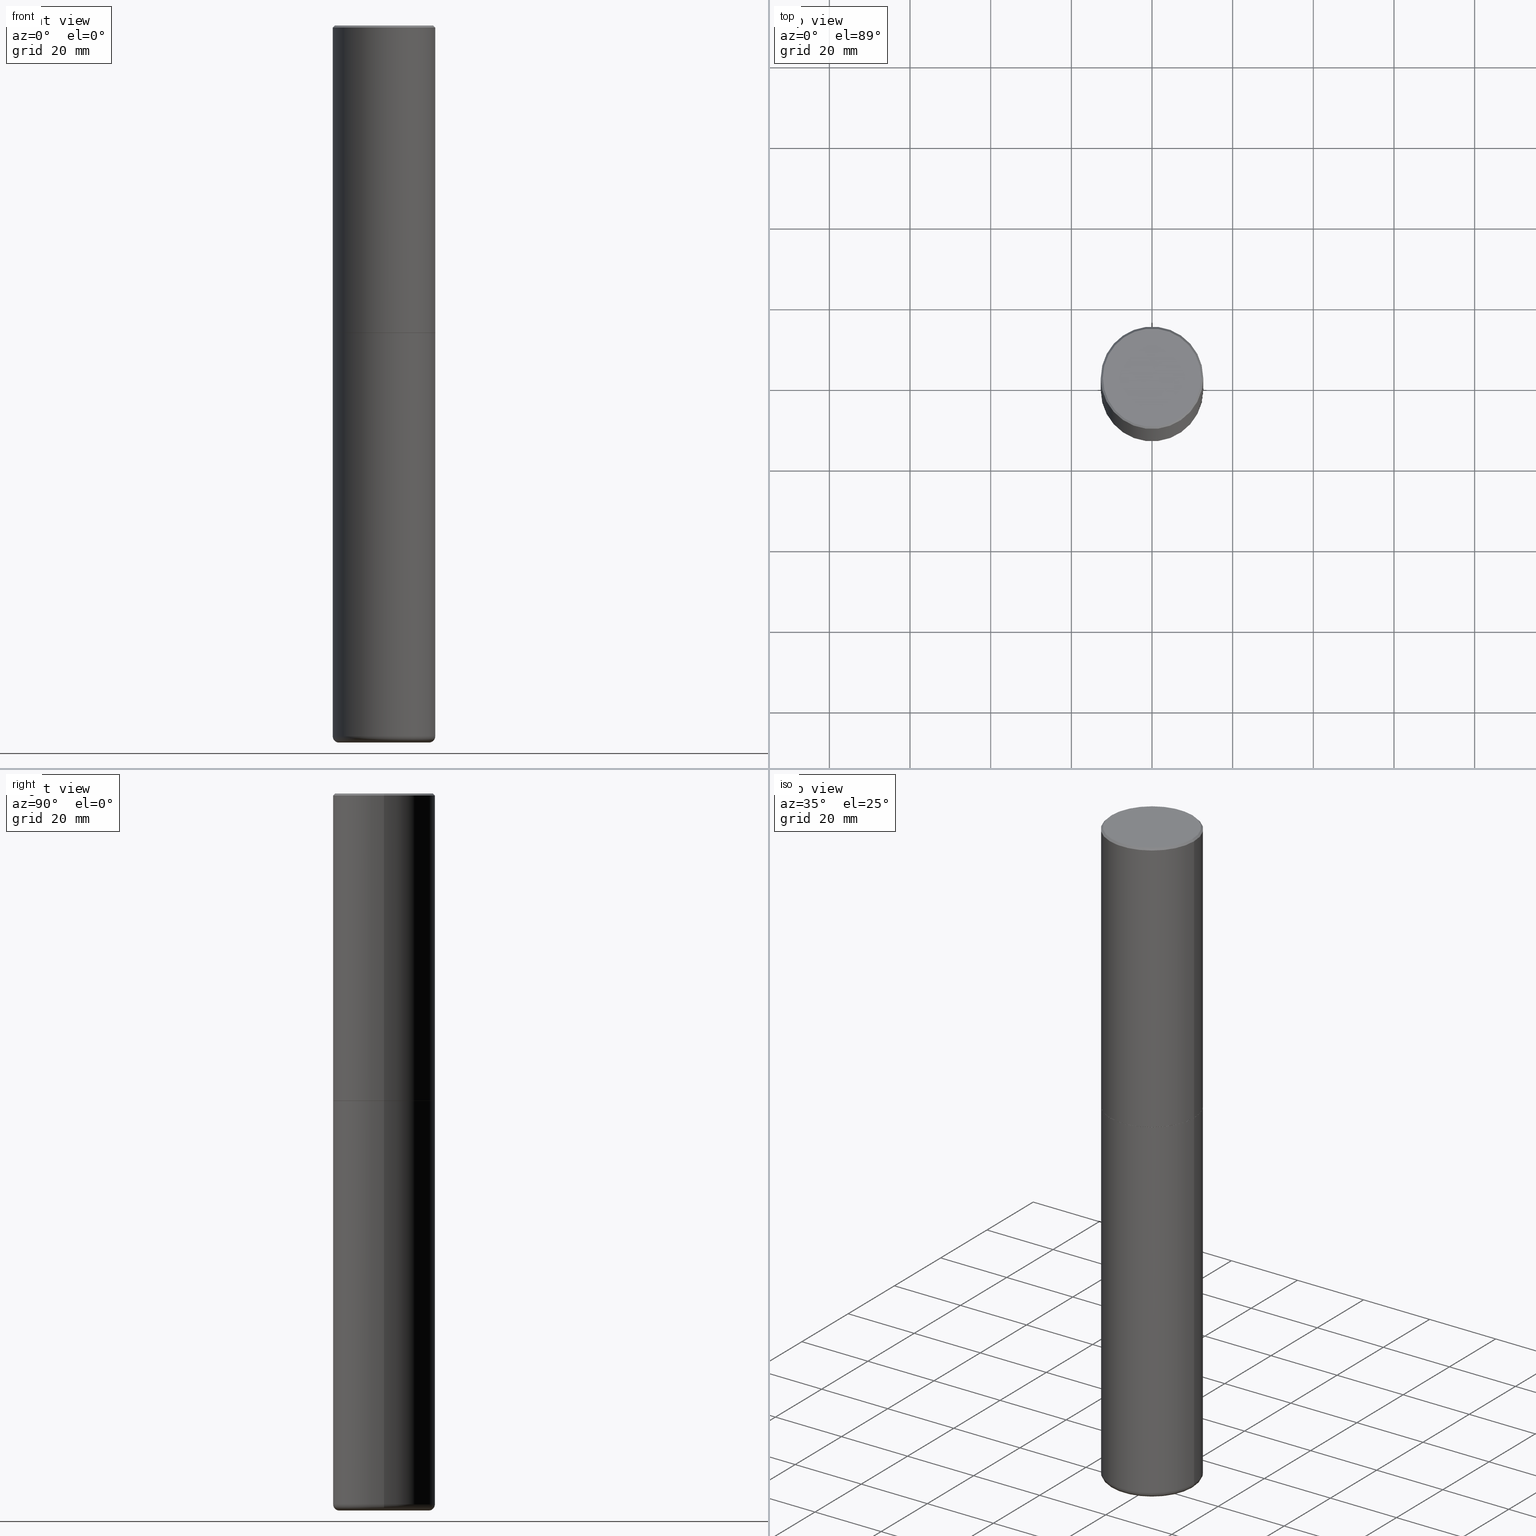
[diagram: canonical four-view strip — front | top / right | iso, engineering-drawing reading convention]
A machine part, canonical four-view strip (front | top / right | iso — engineering-drawing reading convention). The complete STEP part file that produces these views, byte-faithful:
ISO-10303-21;
HEADER;
FILE_DESCRIPTION (( 'STEP AP203' ),
    '1' );
FILE_NAME ('77333.STEP',
    '2024-03-06T17:09:45',
    ( '' ),
    ( '' ),
    'SwSTEP 2.0',
    'SolidWorks 2023',
    '' );
FILE_SCHEMA (( 'CONFIG_CONTROL_DESIGN' ));
ENDSEC;

DATA;
#1 = ORIENTED_EDGE ( 'NONE', *, *, #186, .T. ) ;
#2 = APPROVAL_DATE_TIME ( #418, #180 ) ;
#3 = CARTESIAN_POINT ( 'NONE',  ( 3.351822085289407153E-15, 0.4799999999999999267, -1.616151867783303914E-15 ) ) ;
#4 = APPLICATION_CONTEXT ( 'configuration controlled 3d designs of mechanical parts and assemblies' ) ;
#5 = DIRECTION ( 'NONE',  ( -2.445468806185136597E-29, 3.491481338843145583E-15, 1.000000000000000000 ) ) ;
#6 = AXIS2_PLACEMENT_3D ( 'NONE', #165, #66, #288 ) ;
#7 = VERTEX_POINT ( 'NONE', #199 ) ;
#8 = ADVANCED_FACE ( 'NONE', ( #314 ), #338, .T. ) ;
#9 = DIRECTION ( 'NONE',  ( 2.445468806185136597E-29, -3.491481338843145583E-15, -1.000000000000000000 ) ) ;
#10 = DIRECTION ( 'NONE',  ( -2.445468806185136597E-29, 3.491481338843145583E-15, 1.000000000000000000 ) ) ;
#11 = FACE_OUTER_BOUND ( 'NONE', #367, .T. ) ;
#12 = ADVANCED_BREP_SHAPE_REPRESENTATION ( '77333', ( #151, #155, #204 ), #107 ) ;
#13 = VECTOR ( 'NONE', #130, 39.37007874015748143 ) ;
#14 = DIRECTION ( 'NONE',  ( -1.000000000000000000, 6.982962677686265922E-15, -4.876176775795935793E-29 ) ) ;
#15 = APPROVAL_DATE_TIME ( #79, #335 ) ;
#16 = ORIENTED_EDGE ( 'NONE', *, *, #302, .T. ) ;
#17 = CIRCLE ( 'NONE', #153, 0.5000000000000001110 ) ;
#18 = LENGTH_MEASURE_WITH_UNIT ( LENGTH_MEASURE( 0.02539999999999999897 ), #377 );
#19 = CC_DESIGN_DATE_AND_TIME_ASSIGNMENT ( #328, #235, ( #64 ) ) ;
#20 = ORIENTED_EDGE ( 'NONE', *, *, #53, .F. ) ;
#21 = DATE_AND_TIME ( #245, #291 ) ;
#22 = DIRECTION ( 'NONE',  ( 1.000000000000000000, -6.982962677686269077E-15, 0.000000000000000000 ) ) ;
#23 = CIRCLE ( 'NONE', #407, 0.5000000000000001110 ) ;
#24 = DIRECTION ( 'NONE',  ( 1.000000000000000000, -6.982962677686266711E-15, 4.876176775795935793E-29 ) ) ;
#25 = FACE_OUTER_BOUND ( 'NONE', #114, .T. ) ;
#26 = EDGE_CURVE ( 'NONE', #145, #273, #227, .T. ) ;
#27 = DIRECTION ( 'NONE',  ( -1.000000000000000000, 6.982962677686265922E-15, 0.000000000000000000 ) ) ;
#28 = VERTEX_POINT ( 'NONE', #96 ) ;
#29 = COORDINATED_UNIVERSAL_TIME_OFFSET ( 5, 0, .BEHIND. ) ;
#30 = ADVANCED_FACE ( 'NONE', ( #348 ), #63, .F. ) ;
#31 = VERTEX_POINT ( 'NONE', #287 ) ;
#32 = CALENDAR_DATE ( 2024, 6, 3 ) ;
#33 = AXIS2_PLACEMENT_3D ( 'NONE', #215, #323, #242 ) ;
#34 = DIRECTION ( 'NONE',  ( 1.000000000000000000, -6.982962677686266711E-15, 4.876176775795935793E-29 ) ) ;
#35 = DIRECTION ( 'NONE',  ( 1.000000000000000000, -6.982962677686265922E-15, 4.876176775795935793E-29 ) ) ;
#36 = APPROVAL_STATUS ( 'not_yet_approved' ) ;
#37 = DIRECTION ( 'NONE',  ( 1.000000000000000000, -6.982962677686270655E-15, 4.883557194083114583E-29 ) ) ;
#38 = TOROIDAL_SURFACE ( 'NONE', #362, 0.4400000000000000022, 0.06000000000000051820 ) ;
#39 = CONICAL_SURFACE ( 'NONE', #268, 0.5000000000000001110, 0.7853981633974458365 ) ;
#40 = FACE_OUTER_BOUND ( 'NONE', #345, .T. ) ;
#41 = CARTESIAN_POINT ( 'NONE',  ( 0.000000000000000000, 0.000000000000000000, 0.000000000000000000 ) ) ;
#42 = DIRECTION ( 'NONE',  ( 1.000000000000000000, -6.982962677686269077E-15, 0.000000000000000000 ) ) ;
#43 = CARTESIAN_POINT ( 'NONE',  ( -0.4989999999999999991, -6.923537310738311664E-15, -2.999999999999999556 ) ) ;
#44 = CALENDAR_DATE ( 2024, 6, 3 ) ;
#45 = APPROVAL_ROLE ( '' ) ;
#46 = VERTEX_POINT ( 'NONE', #131 ) ;
#47 = EDGE_CURVE ( 'NONE', #62, #334, #399, .T. ) ;
#48 = CIRCLE ( 'NONE', #275, 0.4989999999999999991 ) ;
#49 = APPROVAL_PERSON_ORGANIZATION ( #183, #335, #45 ) ;
#50 = ORIENTED_EDGE ( 'NONE', *, *, #322, .F. ) ;
#51 = APPROVAL_STATUS ( 'not_yet_approved' ) ;
#52 = DIRECTION ( 'NONE',  ( -2.445468806185136597E-29, 3.491481338843145583E-15, 1.000000000000000000 ) ) ;
#53 = EDGE_CURVE ( 'NONE', #31, #223, #408, .T. ) ;
#54 = ORIENTED_EDGE ( 'NONE', *, *, #365, .F. ) ;
#55 = DIRECTION ( 'NONE',  ( -2.445468806185136597E-29, 3.491481338843145583E-15, 1.000000000000000000 ) ) ;
#56 = DIRECTION ( 'NONE',  ( 0.000000000000000000, 0.000000000000000000, 1.000000000000000000 ) ) ;
#57 = CIRCLE ( 'NONE', #312, 0.5000000000000001110 ) ;
#58 = CARTESIAN_POINT ( 'NONE',  ( 7.336406418555408669E-29, -1.047444401652943478E-14, -2.999999999999999556 ) ) ;
#59 = FACE_OUTER_BOUND ( 'NONE', #83, .T. ) ;
#60 = PERSON_AND_ORGANIZATION_ROLE ( 'design_owner' ) ;
#61 = ADVANCED_FACE ( 'NONE', ( #25 ), #110, .T. ) ;
#62 = VERTEX_POINT ( 'NONE', #411 ) ;
#63 = PLANE ( 'NONE',  #400 ) ;
#64 = SECURITY_CLASSIFICATION ( '', '', #213 ) ;
#65 = CARTESIAN_POINT ( 'NONE',  ( 0.5000000000000001110, -3.500078625662629868E-15, -0.02000000000000010797 ) ) ;
#66 = DIRECTION ( 'NONE',  ( -2.445468806185136597E-29, 3.491481338843145583E-15, 1.000000000000000000 ) ) ;
#67 = EDGE_CURVE ( 'NONE', #241, #297, #350, .T. ) ;
#68 = CYLINDRICAL_SURFACE ( 'NONE', #320, 0.5000000000000000000 ) ;
#69 = ORIENTED_EDGE ( 'NONE', *, *, #216, .F. ) ;
#70 = AXIS2_PLACEMENT_3D ( 'NONE', #139, #313, #98 ) ;
#71 = PRODUCT_DEFINITION_FORMATION_WITH_SPECIFIED_SOURCE ( 'ANY', '', #120, .NOT_KNOWN. ) ;
#72 = FACE_OUTER_BOUND ( 'NONE', #123, .T. ) ;
#73 = ADVANCED_FACE ( 'NONE', ( #59 ), #196, .F. ) ;
#74 = DIRECTION ( 'NONE',  ( 1.000000000000000000, -6.982962677686265922E-15, 0.000000000000000000 ) ) ;
#75 = PERSON_AND_ORGANIZATION_ROLE ( 'classification_officer' ) ;
#76 = CC_DESIGN_PERSON_AND_ORGANIZATION_ASSIGNMENT ( #307, #60, ( #120 ) ) ;
#77 = DIRECTION ( 'NONE',  ( -2.445468806185136877E-29, 3.491481338843145188E-15, 1.000000000000000000 ) ) ;
#78 = AXIS2_PLACEMENT_3D ( 'NONE', #357, #326, #324 ) ;
#79 = DATE_AND_TIME ( #44, #136 ) ;
#80 = EDGE_CURVE ( 'NONE', #145, #7, #290, .T. ) ;
#81 = ORIENTED_EDGE ( 'NONE', *, *, #373, .F. ) ;
#82 = CYLINDRICAL_SURFACE ( 'NONE', #332, 0.5000000000000002220 ) ;
#83 = EDGE_LOOP ( 'NONE', ( #218, #277 ) ) ;
#84 = DIRECTION ( 'NONE',  ( 1.000000000000000000, -6.982962677686269077E-15, 0.000000000000000000 ) ) ;
#85 = AXIS2_PLACEMENT_3D ( 'NONE', #269, #293, #356 ) ;
#86 = PERSON_AND_ORGANIZATION_ROLE ( 'creator' ) ;
#87 = UNCERTAINTY_MEASURE_WITH_UNIT (LENGTH_MEASURE( 1.000000000000000082E-05 ), #149, 'distance_accuracy_value', 'NONE');
#88 = CC_DESIGN_DATE_AND_TIME_ASSIGNMENT ( #21, #138, ( #211 ) ) ;
#89 = DIRECTION ( 'NONE',  ( -2.445468806185136597E-29, 3.491481338843145583E-15, 1.000000000000000000 ) ) ;
#90 = DIRECTION ( 'NONE',  ( 1.000000000000000000, -6.982962677686265922E-15, 0.000000000000000000 ) ) ;
#91 = AXIS2_PLACEMENT_3D ( 'NONE', #259, #386, #100 ) ;
#92 = DIRECTION ( 'NONE',  ( -2.445468806185136597E-29, 3.491481338843145583E-15, 1.000000000000000000 ) ) ;
#93 = DIRECTION ( 'NONE',  ( -0.7071067811867406405, 7.493145998871051513E-15, 0.7071067811863543939 ) ) ;
#94 =( NAMED_UNIT ( * ) SI_UNIT ( $, .STERADIAN. ) SOLID_ANGLE_UNIT ( ) );
#95 = FACE_OUTER_BOUND ( 'NONE', #168, .T. ) ;
#96 = CARTESIAN_POINT ( 'NONE',  ( -0.5000000000000003331, -1.717677402183223054E-15, -2.999000000000000110 ) ) ;
#97 = CC_DESIGN_PERSON_AND_ORGANIZATION_ASSIGNMENT ( #170, #260, ( #71 ) ) ;
#98 = DIRECTION ( 'NONE',  ( 1.000000000000000000, -6.982962677686265922E-15, 0.000000000000000000 ) ) ;
#99 = ORIENTED_EDGE ( 'NONE', *, *, #67, .F. ) ;
#100 = DIRECTION ( 'NONE',  ( -1.000000000000000000, 7.105427357600994759E-15, 0.000000000000000000 ) ) ;
#101 = PERSON_AND_ORGANIZATION ( #376, #147 ) ;
#102 = AXIS2_PLACEMENT_3D ( 'NONE', #381, #92, #225 ) ;
#103 = EDGE_CURVE ( 'NONE', #334, #236, #372, .T. ) ;
#104 = CARTESIAN_POINT ( 'NONE',  ( -0.5000000000000002220, -2.067816681277092470E-14, -6.939999999999999503 ) ) ;
#105 = DIRECTION ( 'NONE',  ( 1.000000000000000000, -6.982962677686266711E-15, 4.876176775795935793E-29 ) ) ;
#106 = ADVANCED_FACE ( 'NONE', ( #11 ), #232, .F. ) ;
#107 =( GEOMETRIC_REPRESENTATION_CONTEXT ( 3 ) GLOBAL_UNCERTAINTY_ASSIGNED_CONTEXT ( ( #87 ) ) GLOBAL_UNIT_ASSIGNED_CONTEXT ( ( #149, #369, #94 ) ) REPRESENTATION_CONTEXT ( 'NONE', 'WORKASPACE' ) );
#108 = FACE_OUTER_BOUND ( 'NONE', #185, .T. ) ;
#109 = CALENDAR_DATE ( 2024, 6, 3 ) ;
#110 = CONICAL_SURFACE ( 'NONE', #214, 0.4989999999999999991, 0.7853981633977213939 ) ;
#111 = APPROVAL_STATUS ( 'not_yet_approved' ) ;
#112 = ORIENTED_EDGE ( 'NONE', *, *, #409, .T. ) ;
#113 = DIRECTION ( 'NONE',  ( 1.000000000000000000, -6.982962677686269077E-15, 0.000000000000000000 ) ) ;
#114 = EDGE_LOOP ( 'NONE', ( #370, #244, #229, #54 ) ) ;
#115 = PERSON_AND_ORGANIZATION ( #376, #147 ) ;
#116 = FACE_OUTER_BOUND ( 'NONE', #284, .T. ) ;
#117 = AXIS2_PLACEMENT_3D ( 'NONE', #156, #374, #410 ) ;
#118 = ORIENTED_EDGE ( 'NONE', *, *, #343, .T. ) ;
#119 = DIRECTION ( 'NONE',  ( 1.000000000000000000, 0.000000000000000000, 0.000000000000000000 ) ) ;
#120 = PRODUCT ( '77333', '77333', '', ( #344 ) ) ;
#121 = ORIENTED_EDGE ( 'NONE', *, *, #322, .T. ) ;
#122 = LINE ( 'NONE', #333, #146 ) ;
#123 = EDGE_LOOP ( 'NONE', ( #285, #311, #121, #99 ) ) ;
#124 = FACE_OUTER_BOUND ( 'NONE', #189, .T. ) ;
#125 = VECTOR ( 'NONE', #337, 39.37007874015748143 ) ;
#126 = CIRCLE ( 'NONE', #358, 0.4989999999999999991 ) ;
#127 = ORIENTED_EDGE ( 'NONE', *, *, #216, .T. ) ;
#128 = DIRECTION ( 'NONE',  ( 1.000000000000000000, -6.982962677686270655E-15, 4.883557194083114583E-29 ) ) ;
#129 = CARTESIAN_POINT ( 'NONE',  ( 7.336406418555408669E-29, -1.047444401652943478E-14, -2.999999999999999556 ) ) ;
#130 = DIRECTION ( 'NONE',  ( -2.445468806185136877E-29, 3.491481338843145188E-15, 1.000000000000000000 ) ) ;
#131 = CARTESIAN_POINT ( 'NONE',  ( -0.5000000000000001110, 3.421651712066270452E-15, -0.02000000000000010797 ) ) ;
#132 = EDGE_CURVE ( 'NONE', #7, #46, #178, .T. ) ;
#133 = CYLINDRICAL_SURFACE ( 'NONE', #402, 0.5000000000000002220 ) ;
#134 = AXIS2_PLACEMENT_3D ( 'NONE', #209, #205, #42 ) ;
#135 = CC_DESIGN_PERSON_AND_ORGANIZATION_ASSIGNMENT ( #366, #75, ( #64 ) ) ;
#136 = LOCAL_TIME ( 12, 9, 45.00000000000000000, #401 ) ;
#137 = ORIENTED_EDGE ( 'NONE', *, *, #240, .F. ) ;
#138 = DATE_TIME_ROLE ( 'creation_date' ) ;
#139 = CARTESIAN_POINT ( 'NONE',  ( 7.333960949749225308E-29, -1.047095253519059177E-14, -2.999000000000000110 ) ) ;
#140 = DIRECTION ( 'NONE',  ( 1.000000000000000000, -6.982962677686265922E-15, 0.000000000000000000 ) ) ;
#141 = AXIS2_PLACEMENT_3D ( 'NONE', #161, #413, #265 ) ;
#142 = DIRECTION ( 'NONE',  ( -2.445468806185136877E-29, 3.491481338843145188E-15, 1.000000000000000000 ) ) ;
#143 = DESIGN_CONTEXT ( 'detailed design', #4, 'design' ) ;
#144 = ORIENTED_EDGE ( 'NONE', *, *, #398, .F. ) ;
#145 = VERTEX_POINT ( 'NONE', #393 ) ;
#146 = VECTOR ( 'NONE', #93, 39.37007874015748143 ) ;
#147 = ORGANIZATION ( 'UNSPECIFIED', 'UNSPECIFIED', '' ) ;
#148 = ORIENTED_EDGE ( 'NONE', *, *, #175, .T. ) ;
#149 =( CONVERSION_BASED_UNIT ( 'INCH', #18 ) LENGTH_UNIT ( ) NAMED_UNIT ( #166 ) );
#150 = ORIENTED_EDGE ( 'NONE', *, *, #132, .F. ) ;
#151 = MANIFOLD_SOLID_BREP ( 'Body-Move/Copy2[1]', #388 ) ;
#152 = DIRECTION ( 'NONE',  ( -2.445468806185136597E-29, 3.491481338843145583E-15, 1.000000000000000000 ) ) ;
#153 = AXIS2_PLACEMENT_3D ( 'NONE', #181, #294, #140 ) ;
#154 = ORIENTED_EDGE ( 'NONE', *, *, #392, .F. ) ;
#155 = MANIFOLD_SOLID_BREP ( 'Body-Move/Copy2[2]', #304 ) ;
#156 = CARTESIAN_POINT ( 'NONE',  ( 1.711828164329595618E-28, -2.444036937190202184E-14, -7.000000000000000888 ) ) ;
#157 = CARTESIAN_POINT ( 'NONE',  ( 7.336406418555408669E-29, -1.047444401652943478E-14, -2.999999999999999556 ) ) ;
#158 = APPROVAL_ROLE ( '' ) ;
#159 = CARTESIAN_POINT ( 'NONE',  ( 1.697155351492484915E-28, -2.423088049157142879E-14, -6.939999999999999503 ) ) ;
#160 = ADVANCED_FACE ( 'NONE', ( #72 ), #212, .T. ) ;
#161 = CARTESIAN_POINT ( 'NONE',  ( 7.336406418555408669E-29, -1.047444401652943478E-14, -2.999999999999999556 ) ) ;
#162 = DATE_AND_TIME ( #301, #174 ) ;
#163 = DIRECTION ( 'NONE',  ( 1.000000000000000000, -6.982962677686269077E-15, 0.000000000000000000 ) ) ;
#164 = APPLICATION_PROTOCOL_DEFINITION ( 'international standard', 'config_control_design', 1994, #270 ) ;
#165 = CARTESIAN_POINT ( 'NONE',  ( -2.922783960138615261E-45, 4.172960877065252270E-31, 1.195183497228115035E-16 ) ) ;
#166 = DIMENSIONAL_EXPONENTS ( 1.000000000000000000, 0.000000000000000000, 0.000000000000000000, 0.000000000000000000, 0.000000000000000000, 0.000000000000000000, 0.000000000000000000 ) ;
#167 = ORIENTED_EDGE ( 'NONE', *, *, #368, .F. ) ;
#168 = EDGE_LOOP ( 'NONE', ( #246, #177, #375, #309 ) ) ;
#169 = LINE ( 'NONE', #176, #13 ) ;
#170 = PERSON_AND_ORGANIZATION ( #376, #147 ) ;
#171 = DIRECTION ( 'NONE',  ( -2.445468806185136597E-29, 3.491481338843145583E-15, 1.000000000000000000 ) ) ;
#172 = DIRECTION ( 'NONE',  ( 1.000000000000000000, -6.982962677686266711E-15, 4.876176775795935793E-29 ) ) ;
#173 = AXIS2_PLACEMENT_3D ( 'NONE', #194, #89, #22 ) ;
#174 = LOCAL_TIME ( 12, 9, 45.00000000000000000, #29 ) ;
#175 = EDGE_CURVE ( 'NONE', #273, #46, #17, .T. ) ;
#176 = CARTESIAN_POINT ( 'NONE',  ( -0.5000000000000000000, 3.552713678800500929E-15, -2.459467545127452891E-29 ) ) ;
#177 = ORIENTED_EDGE ( 'NONE', *, *, #398, .T. ) ;
#178 = LINE ( 'NONE', #182, #210 ) ;
#179 = PRODUCT_DEFINITION_SHAPE ( 'NONE', 'NONE',  #211 ) ;
#180 = APPROVAL ( #36, 'UNSPECIFIED' ) ;
#181 = CARTESIAN_POINT ( 'NONE',  ( 4.890937612370299433E-31, -6.982962677686328587E-17, -0.02000000000000010797 ) ) ;
#182 = CARTESIAN_POINT ( 'NONE',  ( -0.5000000000000001110, 3.421651712066270452E-15, -0.02000000000000010797 ) ) ;
#183 = PERSON_AND_ORGANIZATION ( #376, #147 ) ;
#184 = CC_DESIGN_PERSON_AND_ORGANIZATION_ASSIGNMENT ( #101, #289, ( #71 ) ) ;
#185 = EDGE_LOOP ( 'NONE', ( #342, #118, #81, #50 ) ) ;
#186 = EDGE_CURVE ( 'NONE', #223, #273, #267, .T. ) ;
#187 = EDGE_LOOP ( 'NONE', ( #385, #353, #271, #127 ) ) ;
#188 = EDGE_CURVE ( 'NONE', #217, #236, #389, .T. ) ;
#189 = EDGE_LOOP ( 'NONE', ( #303, #331, #137, #281 ) ) ;
#190 = COORDINATED_UNIVERSAL_TIME_OFFSET ( 5, 0, .BEHIND. ) ;
#191 = VERTEX_POINT ( 'NONE', #43 ) ;
#192 = AXIS2_PLACEMENT_3D ( 'NONE', #3, #321, #14 ) ;
#193 = LOCAL_TIME ( 12, 9, 45.00000000000000000, #295 ) ;
#194 = CARTESIAN_POINT ( 'NONE',  ( 7.336406418555408669E-29, -1.047444401652943478E-14, -2.999999999999999556 ) ) ;
#195 = CARTESIAN_POINT ( 'NONE',  ( 7.333960949749225308E-29, -1.047095253519059177E-14, -2.999000000000000110 ) ) ;
#196 = PLANE ( 'NONE',  #141 ) ;
#197 = APPLICATION_PROTOCOL_DEFINITION ( 'international standard', 'config_control_design', 1994, #4 ) ;
#198 = DIRECTION ( 'NONE',  ( -2.445468806185136597E-29, 3.491481338843145583E-15, 1.000000000000000000 ) ) ;
#199 = CARTESIAN_POINT ( 'NONE',  ( -0.4799999999999999267, 3.386736898677839197E-15, 1.195183497227879609E-16 ) ) ;
#200 = COORDINATED_UNIVERSAL_TIME_OFFSET ( 5, 0, .BEHIND. ) ;
#201 = DIRECTION ( 'NONE',  ( -1.000000000000000000, 6.982962677686265922E-15, -4.876176775795935793E-29 ) ) ;
#202 = CONICAL_SURFACE ( 'NONE', #305, 0.5000000000000001110, 0.7853981633974458365 ) ;
#203 = DIRECTION ( 'NONE',  ( -2.438088387897960049E-29, 3.491481338843145188E-15, 1.000000000000000000 ) ) ;
#204 = AXIS2_PLACEMENT_3D ( 'NONE', #247, #56, #119 ) ;
#205 = DIRECTION ( 'NONE',  ( -2.445468806185136597E-29, 3.491481338843145583E-15, 1.000000000000000000 ) ) ;
#206 = ADVANCED_FACE ( 'NONE', ( #108 ), #68, .T. ) ;
#207 = CARTESIAN_POINT ( 'NONE',  ( 0.5000000000000000000, -3.491481338843133355E-15, 2.438088387897967896E-29 ) ) ;
#208 = ORIENTED_EDGE ( 'NONE', *, *, #80, .T. ) ;
#209 = CARTESIAN_POINT ( 'NONE',  ( 1.697155351492484915E-28, -2.423088049157142879E-14, -6.939999999999999503 ) ) ;
#210 = VECTOR ( 'NONE', #316, 39.37007874015748143 ) ;
#211 = PRODUCT_DEFINITION ( 'UNKNOWN', '', #71, #143 ) ;
#212 = CYLINDRICAL_SURFACE ( 'NONE', #327, 0.5000000000000000000 ) ;
#213 = SECURITY_CLASSIFICATION_LEVEL ( 'unclassified' ) ;
#214 = AXIS2_PLACEMENT_3D ( 'NONE', #157, #249, #282 ) ;
#215 = CARTESIAN_POINT ( 'NONE',  ( 7.336406418555408669E-29, -1.047444401652943478E-14, -2.999999999999999556 ) ) ;
#216 = EDGE_CURVE ( 'NONE', #46, #273, #23, .T. ) ;
#217 = VERTEX_POINT ( 'NONE', #396 ) ;
#218 = ORIENTED_EDGE ( 'NONE', *, *, #373, .T. ) ;
#219 = EDGE_LOOP ( 'NONE', ( #364, #144 ) ) ;
#220 = PERSON_AND_ORGANIZATION ( #376, #147 ) ;
#221 = CIRCLE ( 'NONE', #70, 0.5000000000000003331 ) ;
#222 = EDGE_CURVE ( 'NONE', #191, #28, #122, .T. ) ;
#223 = VERTEX_POINT ( 'NONE', #248 ) ;
#224 = VECTOR ( 'NONE', #77, 39.37007874015748143 ) ;
#225 = DIRECTION ( 'NONE',  ( 1.000000000000000000, -6.982962677686266711E-15, 0.000000000000000000 ) ) ;
#226 = CARTESIAN_POINT ( 'NONE',  ( 1.697155351492484915E-28, -2.423088049157142879E-14, -6.939999999999999503 ) ) ;
#227 = LINE ( 'NONE', #384, #237 ) ;
#228 = DIRECTION ( 'NONE',  ( -1.000000000000000000, 6.982962677686265922E-15, 0.000000000000000000 ) ) ;
#229 = ORIENTED_EDGE ( 'NONE', *, *, #53, .T. ) ;
#230 = CIRCLE ( 'NONE', #262, 0.5000000000000003331 ) ;
#231 = CARTESIAN_POINT ( 'NONE',  ( 0.4989999999999999991, -1.395894239269488369E-14, -2.999999999999999556 ) ) ;
#232 = PLANE ( 'NONE',  #192 ) ;
#233 = CC_DESIGN_APPROVAL ( #180, ( #71 ) ) ;
#234 = CARTESIAN_POINT ( 'NONE',  ( 4.890937612370299433E-31, -6.982962677686328587E-17, -0.02000000000000010797 ) ) ;
#235 = DATE_TIME_ROLE ( 'classification_date' ) ;
#236 = VERTEX_POINT ( 'NONE', #379 ) ;
#237 = VECTOR ( 'NONE', #417, 39.37007874015748143 ) ;
#238 = VECTOR ( 'NONE', #258, 39.37007874015748143 ) ;
#239 = EDGE_LOOP ( 'NONE', ( #280, #154 ) ) ;
#240 = EDGE_CURVE ( 'NONE', #236, #334, #57, .T. ) ;
#241 = VERTEX_POINT ( 'NONE', #283 ) ;
#242 = DIRECTION ( 'NONE',  ( 1.000000000000000000, -6.982962677686266711E-15, 0.000000000000000000 ) ) ;
#243 = VECTOR ( 'NONE', #142, 39.37007874015748143 ) ;
#244 = ORIENTED_EDGE ( 'NONE', *, *, #392, .T. ) ;
#245 = CALENDAR_DATE ( 2024, 6, 3 ) ;
#246 = ORIENTED_EDGE ( 'NONE', *, *, #47, .F. ) ;
#247 = CARTESIAN_POINT ( 'NONE',  ( 0.000000000000000000, 0.000000000000000000, 0.000000000000000000 ) ) ;
#248 = CARTESIAN_POINT ( 'NONE',  ( 0.5000000000000003331, -1.396243387403372828E-14, -2.999000000000000110 ) ) ;
#249 = DIRECTION ( 'NONE',  ( -2.445468806185136597E-29, 3.491481338843145583E-15, 1.000000000000000000 ) ) ;
#250 = DIRECTION ( 'NONE',  ( -2.445468806185136597E-29, 3.491481338843145583E-15, 1.000000000000000000 ) ) ;
#251 = CIRCLE ( 'NONE', #6, 0.4799999999999999267 ) ;
#252 = CC_DESIGN_APPROVAL ( #335, ( #64 ) ) ;
#253 = EDGE_CURVE ( 'NONE', #223, #28, #230, .T. ) ;
#254 = ORIENTED_EDGE ( 'NONE', *, *, #26, .T. ) ;
#255 = DIRECTION ( 'NONE',  ( -2.445468806185136597E-29, 3.491481338843145583E-15, 1.000000000000000000 ) ) ;
#256 = ORIENTED_EDGE ( 'NONE', *, *, #253, .T. ) ;
#257 = ADVANCED_FACE ( 'NONE', ( #339 ), #202, .T. ) ;
#258 = DIRECTION ( 'NONE',  ( -2.445468806185136877E-29, 3.491481338843145188E-15, 1.000000000000000000 ) ) ;
#259 = CARTESIAN_POINT ( 'NONE',  ( -0.4400000000000000022, -2.110449245422698835E-14, -6.939999999999999503 ) ) ;
#260 = PERSON_AND_ORGANIZATION_ROLE ( 'creator' ) ;
#261 = FACE_OUTER_BOUND ( 'NONE', #329, .T. ) ;
#262 = AXIS2_PLACEMENT_3D ( 'NONE', #195, #250, #90 ) ;
#263 = DIRECTION ( 'NONE',  ( -2.445468806185136597E-29, 3.491481338843145583E-15, 1.000000000000000000 ) ) ;
#264 = APPROVAL_PERSON_ORGANIZATION ( #414, #180, #346 ) ;
#265 = DIRECTION ( 'NONE',  ( -1.000000000000000000, 6.982962677686265922E-15, -4.876176775795935793E-29 ) ) ;
#266 = SHAPE_DEFINITION_REPRESENTATION ( #179, #12 ) ;
#267 = LINE ( 'NONE', #395, #243 ) ;
#268 = AXIS2_PLACEMENT_3D ( 'NONE', #292, #9, #228 ) ;
#269 = CARTESIAN_POINT ( 'NONE',  ( 0.4400000000000000022, -2.730338406975338551E-14, -6.939999999999999503 ) ) ;
#270 = APPLICATION_CONTEXT ( 'configuration controlled 3d designs of mechanical parts and assemblies' ) ;
#271 = ORIENTED_EDGE ( 'NONE', *, *, #132, .T. ) ;
#272 = ADVANCED_FACE ( 'NONE', ( #124 ), #38, .T. ) ;
#273 = VERTEX_POINT ( 'NONE', #65 ) ;
#274 = CIRCLE ( 'NONE', #117, 0.4400000000000000022 ) ;
#275 = AXIS2_PLACEMENT_3D ( 'NONE', #300, #152, #84 ) ;
#276 = ADVANCED_FACE ( 'NONE', ( #391 ), #347, .T. ) ;
#277 = ORIENTED_EDGE ( 'NONE', *, *, #67, .T. ) ;
#278 = ORIENTED_EDGE ( 'NONE', *, *, #365, .T. ) ;
#279 = CARTESIAN_POINT ( 'NONE',  ( 0.000000000000000000, 0.000000000000000000, 0.000000000000000000 ) ) ;
#280 = ORIENTED_EDGE ( 'NONE', *, *, #409, .F. ) ;
#281 = ORIENTED_EDGE ( 'NONE', *, *, #188, .F. ) ;
#282 = DIRECTION ( 'NONE',  ( 1.000000000000000000, -6.982962677686269077E-15, 0.000000000000000000 ) ) ;
#283 = CARTESIAN_POINT ( 'NONE',  ( -0.5000000000000000000, -1.379994857524993085E-14, -2.999999999999999556 ) ) ;
#284 = EDGE_LOOP ( 'NONE', ( #167, #278, #1, #69 ) ) ;
#285 = ORIENTED_EDGE ( 'NONE', *, *, #343, .F. ) ;
#286 = LINE ( 'NONE', #361, #224 ) ;
#287 = CARTESIAN_POINT ( 'NONE',  ( 0.4989999999999999991, -1.395894239269488369E-14, -2.999999999999999556 ) ) ;
#288 = DIRECTION ( 'NONE',  ( 1.000000000000000000, -6.982962677686266711E-15, 4.874852205035277589E-29 ) ) ;
#289 = PERSON_AND_ORGANIZATION_ROLE ( 'design_supplier' ) ;
#290 = CIRCLE ( 'NONE', #78, 0.4799999999999999267 ) ;
#291 = LOCAL_TIME ( 12, 9, 45.00000000000000000, #190 ) ;
#292 = CARTESIAN_POINT ( 'NONE',  ( 4.890937612370299433E-31, -6.982962677686328587E-17, -0.02000000000000010797 ) ) ;
#293 = DIRECTION ( 'NONE',  ( -6.982962677686266711E-15, -1.000000000000000000, 3.491481338843145583E-15 ) ) ;
#294 = DIRECTION ( 'NONE',  ( -2.445468806185136597E-29, 3.491481338843145583E-15, 1.000000000000000000 ) ) ;
#295 = COORDINATED_UNIVERSAL_TIME_OFFSET ( 5, 0, .BEHIND. ) ;
#296 = CIRCLE ( 'NONE', #415, 0.4400000000000000022 ) ;
#297 = VERTEX_POINT ( 'NONE', #390 ) ;
#298 = CIRCLE ( 'NONE', #33, 0.5000000000000000000 ) ;
#299 = EDGE_LOOP ( 'NONE', ( #112, #404, #403, #20 ) ) ;
#300 = CARTESIAN_POINT ( 'NONE',  ( 7.336406418555408669E-29, -1.047444401652943478E-14, -2.999999999999999556 ) ) ;
#301 = CALENDAR_DATE ( 2024, 6, 3 ) ;
#302 = EDGE_CURVE ( 'NONE', #7, #145, #251, .T. ) ;
#303 = ORIENTED_EDGE ( 'NONE', *, *, #405, .T. ) ;
#304 = CLOSED_SHELL ( 'NONE', ( #8, #349, #355, #257, #380, #61, #30, #106 ) ) ;
#305 = AXIS2_PLACEMENT_3D ( 'NONE', #308, #412, #27 ) ;
#306 = ORIENTED_EDGE ( 'NONE', *, *, #80, .F. ) ;
#307 = PERSON_AND_ORGANIZATION ( #376, #147 ) ;
#308 = CARTESIAN_POINT ( 'NONE',  ( 4.890937612370299433E-31, -6.982962677686328587E-17, -0.02000000000000010797 ) ) ;
#309 = ORIENTED_EDGE ( 'NONE', *, *, #103, .F. ) ;
#310 = CC_DESIGN_PERSON_AND_ORGANIZATION_ASSIGNMENT ( #115, #86, ( #211 ) ) ;
#311 = ORIENTED_EDGE ( 'NONE', *, *, #103, .T. ) ;
#312 = AXIS2_PLACEMENT_3D ( 'NONE', #226, #198, #163 ) ;
#313 = DIRECTION ( 'NONE',  ( -2.445468806185136597E-29, 3.491481338843145583E-15, 1.000000000000000000 ) ) ;
#314 = FACE_OUTER_BOUND ( 'NONE', #299, .T. ) ;
#315 = CARTESIAN_POINT ( 'NONE',  ( 4.978759091833445139E-29, -4.182485660431097497E-14, -7.000000000000000888 ) ) ;
#316 = DIRECTION ( 'NONE',  ( -0.7071067811865457964, 2.468850131082238917E-15, -0.7071067811865492381 ) ) ;
#317 = CARTESIAN_POINT ( 'NONE',  ( 1.697155351492484915E-28, -2.423088049157142879E-14, -6.939999999999999503 ) ) ;
#318 = CARTESIAN_POINT ( 'NONE',  ( 0.000000000000000000, 0.000000000000000000, 0.000000000000000000 ) ) ;
#319 = CARTESIAN_POINT ( 'NONE',  ( 0.000000000000000000, 0.000000000000000000, 0.000000000000000000 ) ) ;
#320 = AXIS2_PLACEMENT_3D ( 'NONE', #318, #10, #172 ) ;
#321 = DIRECTION ( 'NONE',  ( 2.438088387897960049E-29, -3.491481338843145188E-15, -1.000000000000000000 ) ) ;
#322 = EDGE_CURVE ( 'NONE', #236, #297, #351, .T. ) ;
#323 = DIRECTION ( 'NONE',  ( -2.445468806185136597E-29, 3.491481338843145583E-15, 1.000000000000000000 ) ) ;
#324 = DIRECTION ( 'NONE',  ( 1.000000000000000000, -6.982962677686266711E-15, 4.874852205035277589E-29 ) ) ;
#325 = ADVANCED_FACE ( 'NONE', ( #95 ), #341, .T. ) ;
#326 = DIRECTION ( 'NONE',  ( -2.445468806185136597E-29, 3.491481338843145583E-15, 1.000000000000000000 ) ) ;
#327 = AXIS2_PLACEMENT_3D ( 'NONE', #41, #263, #105 ) ;
#328 = DATE_AND_TIME ( #109, #193 ) ;
#329 = EDGE_LOOP ( 'NONE', ( #256, #336, #397, #378 ) ) ;
#330 = DIRECTION ( 'NONE',  ( 1.000000000000000000, -6.982962677686262766E-15, 0.000000000000000000 ) ) ;
#331 = ORIENTED_EDGE ( 'NONE', *, *, #47, .T. ) ;
#332 = AXIS2_PLACEMENT_3D ( 'NONE', #279, #55, #24 ) ;
#333 = CARTESIAN_POINT ( 'NONE',  ( -0.4989999999999999991, -6.928835765086534855E-15, -2.999999999999999556 ) ) ;
#334 = VERTEX_POINT ( 'NONE', #104 ) ;
#335 = APPROVAL ( #111, 'UNSPECIFIED' ) ;
#336 = ORIENTED_EDGE ( 'NONE', *, *, #368, .T. ) ;
#337 = DIRECTION ( 'NONE',  ( 0.7071067811867406405, -2.468850131084279700E-15, 0.7071067811863543939 ) ) ;
#338 = CONICAL_SURFACE ( 'NONE', #173, 0.4989999999999999991, 0.7853981633977213939 ) ;
#339 = FACE_OUTER_BOUND ( 'NONE', #187, .T. ) ;
#340 = DIRECTION ( 'NONE',  ( -2.445468806185136597E-29, 3.491481338843145583E-15, 1.000000000000000000 ) ) ;
#341 = TOROIDAL_SURFACE ( 'NONE', #394, 0.4400000000000000022, 0.06000000000000051820 ) ;
#342 = ORIENTED_EDGE ( 'NONE', *, *, #240, .T. ) ;
#343 = EDGE_CURVE ( 'NONE', #334, #241, #169, .T. ) ;
#344 = MECHANICAL_CONTEXT ( 'NONE', #270, 'mechanical' ) ;
#345 = EDGE_LOOP ( 'NONE', ( #306, #254, #148, #150 ) ) ;
#346 = APPROVAL_ROLE ( '' ) ;
#347 = PLANE ( 'NONE',  #382 ) ;
#348 = FACE_OUTER_BOUND ( 'NONE', #239, .T. ) ;
#349 = ADVANCED_FACE ( 'NONE', ( #261 ), #133, .T. ) ;
#350 = CIRCLE ( 'NONE', #102, 0.5000000000000000000 ) ;
#351 = LINE ( 'NONE', #207, #238 ) ;
#352 = CC_DESIGN_SECURITY_CLASSIFICATION ( #64, ( #71 ) ) ;
#353 = ORIENTED_EDGE ( 'NONE', *, *, #302, .F. ) ;
#354 = DIRECTION ( 'NONE',  ( 2.438088387897960049E-29, -3.491481338843145188E-15, -1.000000000000000000 ) ) ;
#355 = ADVANCED_FACE ( 'NONE', ( #40 ), #39, .T. ) ;
#356 = DIRECTION ( 'NONE',  ( 1.000000000000000000, -6.982962677686273021E-15, 0.000000000000000000 ) ) ;
#357 = CARTESIAN_POINT ( 'NONE',  ( -2.922783960138615261E-45, 4.172960877065252270E-31, 1.195183497228115035E-16 ) ) ;
#358 = AXIS2_PLACEMENT_3D ( 'NONE', #58, #52, #113 ) ;
#359 = PRODUCT_RELATED_PRODUCT_CATEGORY ( 'detail', '', ( #120 ) ) ;
#360 = DIRECTION ( 'NONE',  ( -2.445468806185136597E-29, 3.491481338843145583E-15, 1.000000000000000000 ) ) ;
#361 = CARTESIAN_POINT ( 'NONE',  ( -0.5000000000000002220, 3.552713678800502507E-15, -2.459467545127454012E-29 ) ) ;
#362 = AXIS2_PLACEMENT_3D ( 'NONE', #159, #5, #128 ) ;
#364 = ORIENTED_EDGE ( 'NONE', *, *, #405, .F. ) ;
#363 = LOCAL_TIME ( 12, 9, 45.00000000000000000, #200 ) ;
#365 = EDGE_CURVE ( 'NONE', #28, #223, #221, .T. ) ;
#366 = PERSON_AND_ORGANIZATION ( #376, #147 ) ;
#367 = EDGE_LOOP ( 'NONE', ( #16, #208 ) ) ;
#368 = EDGE_CURVE ( 'NONE', #28, #46, #286, .T. ) ;
#369 =( NAMED_UNIT ( * ) PLANE_ANGLE_UNIT ( ) SI_UNIT ( $, .RADIAN. ) );
#370 = ORIENTED_EDGE ( 'NONE', *, *, #222, .F. ) ;
#371 = APPROVAL_DATE_TIME ( #162, #387 ) ;
#372 = CIRCLE ( 'NONE', #134, 0.5000000000000001110 ) ;
#373 = EDGE_CURVE ( 'NONE', #297, #241, #298, .T. ) ;
#374 = DIRECTION ( 'NONE',  ( -2.445468806185136597E-29, 3.491481338843145583E-15, 1.000000000000000000 ) ) ;
#375 = ORIENTED_EDGE ( 'NONE', *, *, #188, .T. ) ;
#376 = PERSON ( 'UNSPECIFIED', 'UNSPECIFIED', 'UNSPECIFIED', ('UNSPECIFIED'), ('UNSPECIFIED'), ('UNSPECIFIED') ) ;
#377 =( LENGTH_UNIT ( ) NAMED_UNIT ( * ) SI_UNIT ( $, .METRE. ) );
#378 = ORIENTED_EDGE ( 'NONE', *, *, #186, .F. ) ;
#379 = CARTESIAN_POINT ( 'NONE',  ( 0.5000000000000002220, -2.772236183041456530E-14, -6.939999999999999503 ) ) ;
#380 = ADVANCED_FACE ( 'NONE', ( #116 ), #82, .T. ) ;
#381 = CARTESIAN_POINT ( 'NONE',  ( 7.336406418555408669E-29, -1.047444401652943478E-14, -2.999999999999999556 ) ) ;
#382 = AXIS2_PLACEMENT_3D ( 'NONE', #315, #354, #201 ) ;
#383 = CC_DESIGN_APPROVAL ( #387, ( #211 ) ) ;
#384 = CARTESIAN_POINT ( 'NONE',  ( 0.5000000000000001110, -3.500078625662629868E-15, -0.02000000000000010797 ) ) ;
#385 = ORIENTED_EDGE ( 'NONE', *, *, #26, .F. ) ;
#386 = DIRECTION ( 'NONE',  ( 7.105427357601001859E-15, 1.000000000000000000, -3.491481338843145583E-15 ) ) ;
#387 = APPROVAL ( #51, 'UNSPECIFIED' ) ;
#388 = CLOSED_SHELL ( 'NONE', ( #206, #272, #73, #160, #325, #276 ) ) ;
#389 = CIRCLE ( 'NONE', #85, 0.06000000000000051820 ) ;
#390 = CARTESIAN_POINT ( 'NONE',  ( 0.5000000000000000000, -1.396592535537256813E-14, -2.999999999999999556 ) ) ;
#391 = FACE_OUTER_BOUND ( 'NONE', #219, .T. ) ;
#392 = EDGE_CURVE ( 'NONE', #191, #31, #48, .T. ) ;
#393 = CARTESIAN_POINT ( 'NONE',  ( 0.4799999999999999267, -3.396558832296482099E-15, 1.195183497228351200E-16 ) ) ;
#394 = AXIS2_PLACEMENT_3D ( 'NONE', #317, #255, #37 ) ;
#395 = CARTESIAN_POINT ( 'NONE',  ( 0.5000000000000002220, -3.491481338843134933E-15, 2.438088387897969017E-29 ) ) ;
#396 = CARTESIAN_POINT ( 'NONE',  ( 0.4400000000000000022, -2.751287295008397541E-14, -7.000000000000000888 ) ) ;
#397 = ORIENTED_EDGE ( 'NONE', *, *, #175, .F. ) ;
#398 = EDGE_CURVE ( 'NONE', #62, #217, #296, .T. ) ;
#399 = CIRCLE ( 'NONE', #91, 0.06000000000000051820 ) ;
#400 = AXIS2_PLACEMENT_3D ( 'NONE', #129, #203, #35 ) ;
#401 = COORDINATED_UNIVERSAL_TIME_OFFSET ( 5, 0, .BEHIND. ) ;
#402 = AXIS2_PLACEMENT_3D ( 'NONE', #319, #171, #34 ) ;
#403 = ORIENTED_EDGE ( 'NONE', *, *, #253, .F. ) ;
#404 = ORIENTED_EDGE ( 'NONE', *, *, #222, .T. ) ;
#405 = EDGE_CURVE ( 'NONE', #217, #62, #274, .T. ) ;
#406 = CARTESIAN_POINT ( 'NONE',  ( 1.711828164329595618E-28, -2.444036937190202184E-14, -7.000000000000000888 ) ) ;
#407 = AXIS2_PLACEMENT_3D ( 'NONE', #234, #360, #74 ) ;
#408 = LINE ( 'NONE', #231, #125 ) ;
#409 = EDGE_CURVE ( 'NONE', #31, #191, #126, .T. ) ;
#410 = DIRECTION ( 'NONE',  ( 1.000000000000000000, -6.982962677686262766E-15, 0.000000000000000000 ) ) ;
#411 = CARTESIAN_POINT ( 'NONE',  ( -0.4400000000000000022, -2.099607407366424990E-14, -7.000000000000000888 ) ) ;
#412 = DIRECTION ( 'NONE',  ( 2.445468806185136597E-29, -3.491481338843145583E-15, -1.000000000000000000 ) ) ;
#413 = DIRECTION ( 'NONE',  ( 2.438088387897960049E-29, -3.491481338843145188E-15, -1.000000000000000000 ) ) ;
#414 = PERSON_AND_ORGANIZATION ( #376, #147 ) ;
#415 = AXIS2_PLACEMENT_3D ( 'NONE', #406, #340, #330 ) ;
#416 = APPROVAL_PERSON_ORGANIZATION ( #220, #387, #158 ) ;
#417 = DIRECTION ( 'NONE',  ( 0.7071067811865457964, -7.319954787623249734E-15, -0.7071067811865492381 ) ) ;
#418 = DATE_AND_TIME ( #32, #363 ) ;
ENDSEC;
END-ISO-10303-21;
